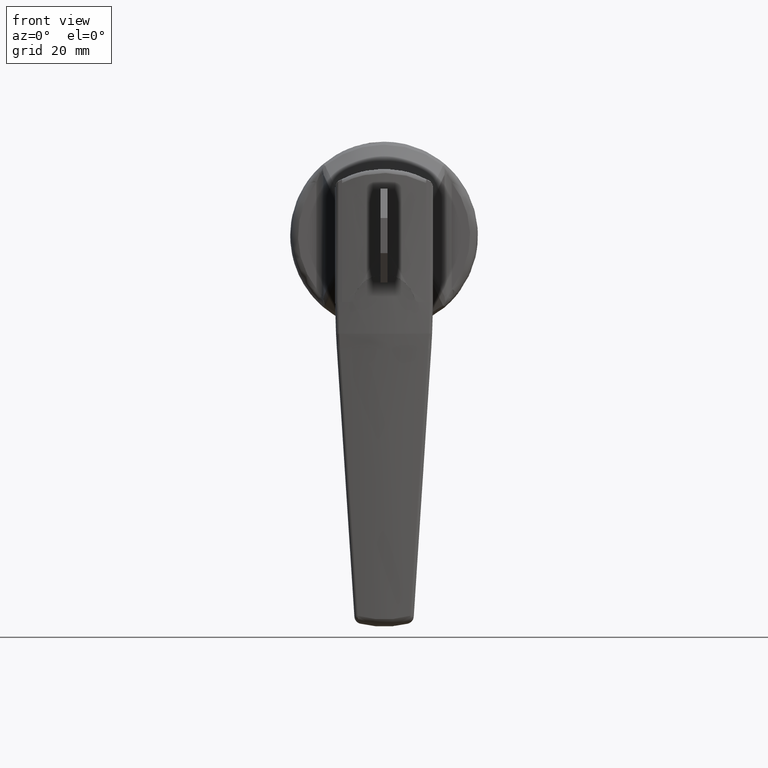
[diagram: clean part render]
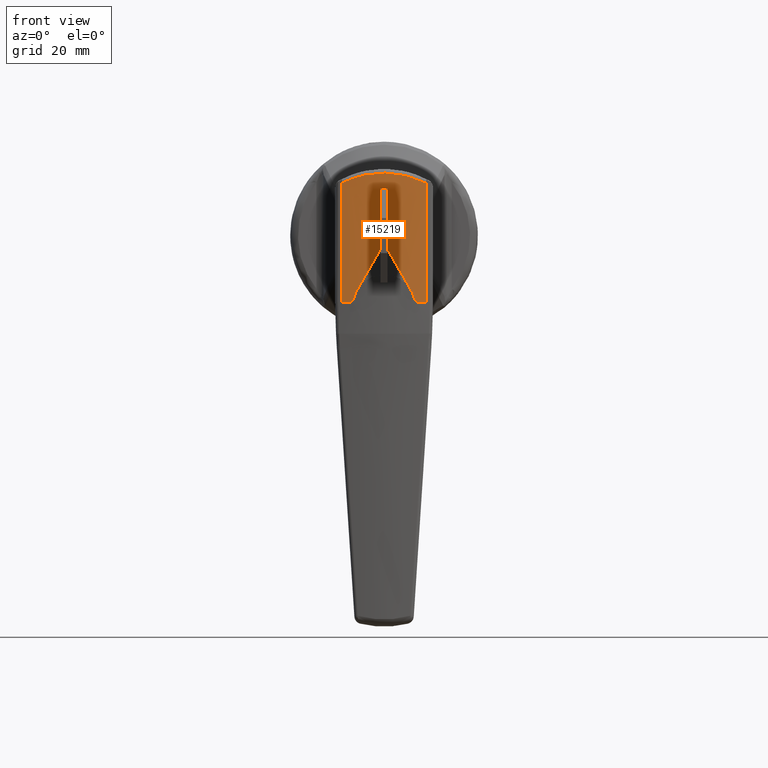
[diagram: same view with one face highlighted and labeled with its STEP entity id]
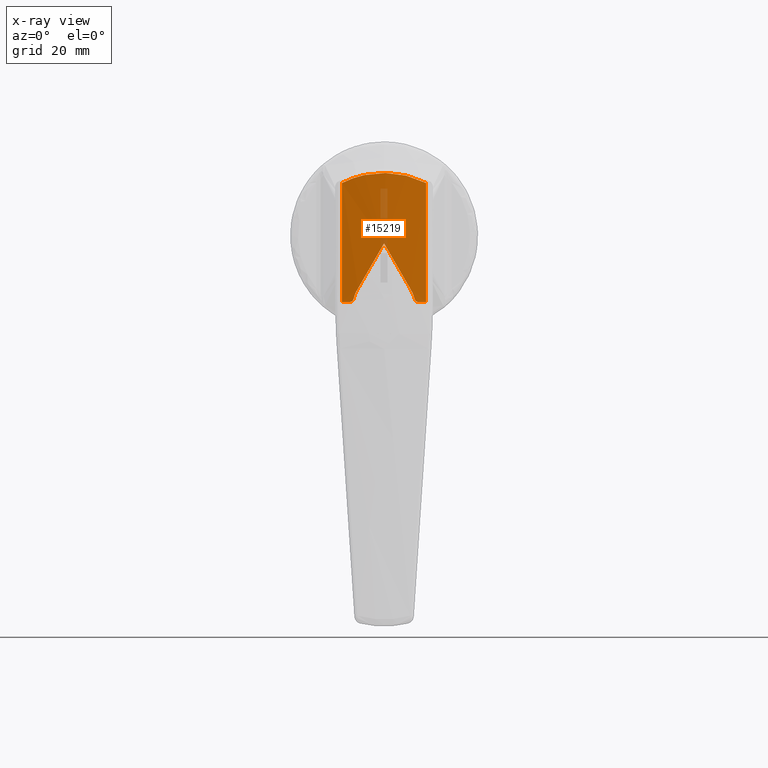
[diagram: x-ray of the same camera — body ghosted, the highlighted face saturated]
A machine part, front view. The second image highlights one B-rep face of the part: STEP entity #15219.
The next image is the same camera in x-ray: the body ghosted, the highlighted face saturated — about 5% of this face is hidden behind the body in this view.
In plain terms, the highlighted face is a freeform B-spline surface patch.
Its self-contained STEP definition (entity closure, byte-faithful):
#14646=CARTESIAN_POINT('',(-43.537279000000098,10.750000000000000,13.426115094219099));
#14647=VERTEX_POINT('',#14646);
#14665=CARTESIAN_POINT('',(-43.537278215540503,-10.750000124898760,13.426114976657461));
#14666=VERTEX_POINT('',#14665);
#14667=CARTESIAN_POINT('',(-43.537278215540503,-10.750000124898779,13.426114976657461));
#14668=CARTESIAN_POINT('',(-43.686708591824612,-9.922402191567278,13.847389578444931));
#14669=CARTESIAN_POINT('',(-43.822458786155167,-9.071986116519360,14.218833909848970));
#14670=CARTESIAN_POINT('',(-43.971818558240159,-7.979948184355112,14.620840445735800));
#14671=CARTESIAN_POINT('',(-44.000673693513292,-7.760084927824916,14.698115481884690));
#14672=CARTESIAN_POINT('',(-44.056266915473032,-7.317415249934289,14.846367005541630));
#14673=CARTESIAN_POINT('',(-44.082959700022052,-7.094947018606865,14.917222255324010));
#14674=CARTESIAN_POINT('',(-44.159399970210487,-6.426342137599623,15.119366884822499));
#14675=CARTESIAN_POINT('',(-44.205619818686174,-5.978137840326531,15.240538985697871));
#14676=CARTESIAN_POINT('',(-44.329655966135171,-4.626204726149862,15.563954815738430));
#14677=CARTESIAN_POINT('',(-44.392857058287298,-3.715178835734724,15.726239507692050));
#14678=CARTESIAN_POINT('',(-44.478009653531743,-1.873522295447263,15.944214853267169));
#14679=CARTESIAN_POINT('',(-44.499968688150190,-0.942894483352474,15.999920336488390));
#14680=CARTESIAN_POINT('',(-44.500031244988733,0.938871998346723,16.000079493404151));
#14681=CARTESIAN_POINT('',(-44.478127893306848,1.869949401578251,15.944516047425680));
#14682=CARTESIAN_POINT('',(-44.393022437078471,3.712614329307406,15.726664321190331));
#14683=CARTESIAN_POINT('',(-44.329812961171861,4.624323888622818,15.564362127514631));
#14684=CARTESIAN_POINT('',(-44.205683100388207,5.977532789943253,15.240705007749010));
#14685=CARTESIAN_POINT('',(-44.159418524964337,6.426204165911926,15.119416543633511));
#14686=CARTESIAN_POINT('',(-44.082886989523452,7.095570823767758,14.917029678042320));
#14687=CARTESIAN_POINT('',(-44.056151829886289,7.318356122482541,14.846060913556929));
#14688=CARTESIAN_POINT('',(-44.000582050683860,7.760790071183724,14.697870284175750));
#14689=CARTESIAN_POINT('',(-43.971738267909892,7.980549028885677,14.620624947482790));
#14690=CARTESIAN_POINT('',(-43.822431517954087,9.072130186117951,14.218758090278261));
#14691=CARTESIAN_POINT('',(-43.686711308371450,9.922387128016606,13.847397234812870));
#14692=CARTESIAN_POINT('',(-43.537279000000098,10.750000000000000,13.426115094219099));
#14693=B_SPLINE_CURVE_WITH_KNOTS('',3,(#14667,#14668,#14669,#14670,#14671,#14672,#14673,#14674,#14675,#14676,#14677,#14678,#14679,#14680,#14681,#14682,#14683,#14684,#14685,#14686,#14687,#14688,#14689,#14690,#14691,#14692),.UNSPECIFIED.,.F.,.U.,(4,2,2,2,2,2,2,2,2,2,2,2,4),(0.0,0.125000000000000,0.156250000000000,0.187500000000000,0.250000000000000,0.375000000000000,0.500000000000000,0.625000000000000,0.750000000000000,0.812500000000000,0.843750000000000,0.875000000000000,1.0),.UNSPECIFIED.);
#14694=EDGE_CURVE('',#14666,#14647,#14693,.T.);
#15005=CARTESIAN_POINT('',(-43.537278215540503,-10.750000124898760,-17.0));
#15006=VERTEX_POINT('',#15005);
#15007=CARTESIAN_POINT('',(-43.537278215540503,-10.750000124898760,13.426114976657461));
#15008=CARTESIAN_POINT('',(-43.537278215540503,-10.750000124898760,-17.0));
#15009=QUASI_UNIFORM_CURVE('',1,(#15007,#15008),.UNSPECIFIED.,.F.,.U.);
#15010=EDGE_CURVE('',#14666,#15006,#15009,.T.);
#15020=CARTESIAN_POINT('',(-43.337462433006827,11.803200922271046,16.825000000311807));
#15021=CARTESIAN_POINT('',(-43.337462433006827,11.803200922271046,-17.845625000007797));
#15022=CARTESIAN_POINT('',(-45.685525333926883,-0.001062606852432,16.825000000311810));
#15023=CARTESIAN_POINT('',(-45.685525333926883,-0.001062606852432,-17.845625000007786));
#15024=CARTESIAN_POINT('',(-43.337055749323369,-11.805245232594203,16.825000000311810));
#15025=CARTESIAN_POINT('',(-43.337055749323369,-11.805245232594203,-17.845625000007782));
#15033=(BOUNDED_SURFACE()B_SPLINE_SURFACE(1,2,((#15020,#15022,#15024),(#15021,#15023,#15025)),.UNSPECIFIED.,.F.,.F.,.U.)B_SPLINE_SURFACE_WITH_KNOTS((2,2),(3,3),(0.0,34.670625000319603),(0.0,23.837504803303339),.UNSPECIFIED.)GEOMETRIC_REPRESENTATION_ITEM()RATIONAL_B_SPLINE_SURFACE(((0.998777720247082,0.978586662766848,0.996748349218564),(0.998777720247082,0.978586662766848,0.996748349218564)))REPRESENTATION_ITEM('')SURFACE());
#15034=CARTESIAN_POINT('',(-43.995087250165803,7.799968323332790,-16.222222130015648));
#15035=VERTEX_POINT('',#15034);
#15036=CARTESIAN_POINT('',(-44.137342838481949,6.614377999999999,-13.499999999999719));
#15037=VERTEX_POINT('',#15036);
#15038=CARTESIAN_POINT('',(-43.995087250165803,7.799968323332790,-16.222222130015648));
#15039=CARTESIAN_POINT('',(-44.008011266776037,7.700557277176603,-15.786072890913610));
#15040=CARTESIAN_POINT('',(-44.025410424252492,7.565067411216221,-15.359256640164050));
#15041=CARTESIAN_POINT('',(-44.051971471999131,7.349316491213052,-14.837705728991530));
#15042=CARTESIAN_POINT('',(-44.057537495075529,7.303719255530198,-14.733771608657360));
#15043=CARTESIAN_POINT('',(-44.069031400243119,7.208576080806815,-14.528838259513689));
#15044=CARTESIAN_POINT('',(-44.074964273674922,7.158991483897222,-14.427715608141870));
#15045=CARTESIAN_POINT('',(-44.093263744136038,7.004298722087343,-14.128309470296630));
#15046=CARTESIAN_POINT('',(-44.106130933475427,6.893262186731714,-13.933980774554099));
#15047=CARTESIAN_POINT('',(-44.125364767548469,6.722570540497400,-13.662235812897229));
#15048=CARTESIAN_POINT('',(-44.131310134508951,6.669216534792989,-13.580624119799729));
#15049=CARTESIAN_POINT('',(-44.137342838481949,6.614377999999999,-13.499999999999719));
#15050=B_SPLINE_CURVE_WITH_KNOTS('',3,(#15038,#15039,#15040,#15041,#15042,#15043,#15044,#15045,#15046,#15047,#15048,#15049),.UNSPECIFIED.,.F.,.U.,(4,2,2,2,2,4),(0.0,0.062500000000000,0.078125000000000,0.093750000000000,0.125000000000000,0.138645389448752),.UNSPECIFIED.);
#15051=EDGE_CURVE('',#15035,#15037,#15050,.T.);
#15052=ORIENTED_EDGE('',*,*,#15051,.T.);
#15053=CARTESIAN_POINT('',(-44.134571334608353,6.639527874999950,-13.499999999999741));
#15054=VERTEX_POINT('',#15053);
#15055=CARTESIAN_POINT('',(-44.137342838481949,6.614377999999999,-13.499999999999741));
#15056=CARTESIAN_POINT('',(-44.135959716072030,6.626953227262900,-13.499999999999744));
#15057=CARTESIAN_POINT('',(-44.134571334608331,6.639527874999948,-13.499999999999741));
#15065=(BOUNDED_CURVE()B_SPLINE_CURVE(2,(#15055,#15056,#15057),.UNSPECIFIED.,.F.,.U.)CURVE()GEOMETRIC_REPRESENTATION_ITEM()QUASI_UNIFORM_CURVE()RATIONAL_B_SPLINE_CURVE((1.0,0.999999978136826,1.0))REPRESENTATION_ITEM(''));
#15066=EDGE_CURVE('',#15037,#15054,#15065,.T.);
#15067=ORIENTED_EDGE('',*,*,#15066,.T.);
#15068=CARTESIAN_POINT('',(-44.500000000000000,0.0,-2.0));
#15069=VERTEX_POINT('',#15068);
#15070=CARTESIAN_POINT('',(-44.134571334608331,6.639527874999965,-13.499999999999741));
#15071=CARTESIAN_POINT('',(-44.500000000000000,3.329820233068273,-7.767418015439009));
#15072=CARTESIAN_POINT('',(-44.500000000000000,3.704434E-015,-2.000000000000007));
#15080=(BOUNDED_CURVE()B_SPLINE_CURVE(2,(#15070,#15071,#15072),.UNSPECIFIED.,.F.,.U.)CURVE()GEOMETRIC_REPRESENTATION_ITEM()QUASI_UNIFORM_CURVE()RATIONAL_B_SPLINE_CURVE((1.0,0.998488822363744,1.0))REPRESENTATION_ITEM(''));
#15081=EDGE_CURVE('',#15054,#15069,#15080,.T.);
#15082=ORIENTED_EDGE('',*,*,#15081,.T.);
#15083=CARTESIAN_POINT('',(-44.134571320806963,-6.639527999999999,-13.499999999999741));
#15084=VERTEX_POINT('',#15083);
#15085=CARTESIAN_POINT('',(-44.500000000000000,1.111330E-014,-1.999999999999981));
#15086=CARTESIAN_POINT('',(-44.500000000000007,-3.329820248835866,-7.767418042749276));
#15087=CARTESIAN_POINT('',(-44.134571320806963,-6.639527999999999,-13.499999999999741));
#15095=(BOUNDED_CURVE()B_SPLINE_CURVE(2,(#15085,#15086,#15087),.UNSPECIFIED.,.F.,.U.)CURVE()GEOMETRIC_REPRESENTATION_ITEM()QUASI_UNIFORM_CURVE()RATIONAL_B_SPLINE_CURVE((1.0,0.998488822349251,1.0))REPRESENTATION_ITEM(''));
#15096=EDGE_CURVE('',#15069,#15084,#15095,.T.);
#15097=ORIENTED_EDGE('',*,*,#15096,.T.);
#15098=CARTESIAN_POINT('',(-44.137342807942552,-6.614378277661491,-13.499999999999741));
#15099=VERTEX_POINT('',#15098);
#15100=CARTESIAN_POINT('',(-44.134571320806927,-6.639527999999993,-13.499999999999741));
#15101=CARTESIAN_POINT('',(-44.135959693869111,-6.626953428595621,-13.499999999999742));
#15102=CARTESIAN_POINT('',(-44.137342807942552,-6.614378277661513,-13.499999999999741));
#15110=(BOUNDED_CURVE()B_SPLINE_CURVE(2,(#15100,#15101,#15102),.UNSPECIFIED.,.F.,.U.)CURVE()GEOMETRIC_REPRESENTATION_ITEM()QUASI_UNIFORM_CURVE()RATIONAL_B_SPLINE_CURVE((1.0,0.999999978137092,1.0))REPRESENTATION_ITEM(''));
#15111=EDGE_CURVE('',#15084,#15099,#15110,.T.);
#15112=ORIENTED_EDGE('',*,*,#15111,.T.);
#15113=CARTESIAN_POINT('',(-43.995087293629901,-7.799967989019470,-16.222222362898101));
#15114=VERTEX_POINT('',#15113);
#15115=CARTESIAN_POINT('',(-44.137342807942552,-6.614378277661491,-13.499999999999741));
#15116=CARTESIAN_POINT('',(-44.131298120357812,-6.669335661255566,-13.580780432788631));
#15117=CARTESIAN_POINT('',(-44.125346010058813,-6.722756579040190,-13.662487155540891));
#15118=CARTESIAN_POINT('',(-44.092732048890262,-7.012179301676098,-14.123306641007140));
#15119=CARTESIAN_POINT('',(-44.068144593405087,-7.217916513121144,-14.520681940746019));
#15120=CARTESIAN_POINT('',(-44.041546378487972,-7.434015494206209,-15.042274447424900));
#15121=CARTESIAN_POINT('',(-44.036425023933582,-7.475237834955387,-15.148060283879699));
#15122=CARTESIAN_POINT('',(-44.026718217799747,-7.552788466590473,-15.360278327841190));
#15123=CARTESIAN_POINT('',(-44.022123121213248,-7.589196550540373,-15.466878031313581));
#15124=CARTESIAN_POINT('',(-44.009137603486167,-7.691431436974204,-15.788126879079179));
#15125=CARTESIAN_POINT('',(-44.001547051387533,-7.750281190647446,-16.004223245653431));
#15126=CARTESIAN_POINT('',(-43.995087293629901,-7.799967989019470,-16.222222362898101));
#15127=B_SPLINE_CURVE_WITH_KNOTS('',3,(#15115,#15116,#15117,#15118,#15119,#15120,#15121,#15122,#15123,#15124,#15125,#15126),.UNSPECIFIED.,.F.,.U.,(4,2,2,2,2,4),(0.861344992751440,0.874999999999999,0.937499999999999,0.953125000000000,0.968750000000000,1.0),.UNSPECIFIED.);
#15128=EDGE_CURVE('',#15099,#15114,#15127,.T.);
#15129=ORIENTED_EDGE('',*,*,#15128,.T.);
#15130=CARTESIAN_POINT('',(-43.860253982076500,-8.774963999999999,-17.0));
#15131=VERTEX_POINT('',#15130);
#15132=CARTESIAN_POINT('',(-43.860253982076451,-8.774963999999999,-17.0));
#15133=CARTESIAN_POINT('',(-43.876780436062361,-8.662225334289175,-17.0));
#15134=CARTESIAN_POINT('',(-43.892532015086680,-8.552554872794634,-16.981464846931448));
#15135=CARTESIAN_POINT('',(-43.915071956085818,-8.392678297459419,-16.925765849467169));
#15136=CARTESIAN_POINT('',(-43.922209379548178,-8.341537874184741,-16.902911999885092));
#15137=CARTESIAN_POINT('',(-43.935725930092779,-8.243857608284648,-16.849137378022419));
#15138=CARTESIAN_POINT('',(-43.942116036930663,-8.197238770117522,-16.818189455301940));
#15139=CARTESIAN_POINT('',(-43.954164578364797,-8.108646505399276,-16.747811087373702));
#15140=CARTESIAN_POINT('',(-43.959682793402990,-8.067704664220178,-16.709163807993271));
#15141=CARTESIAN_POINT('',(-43.969683645725297,-7.993025876738636,-16.625860883907698));
#15142=CARTESIAN_POINT('',(-43.974183734213078,-7.959159255166562,-16.581103189666550));
#15143=CARTESIAN_POINT('',(-43.982179829459007,-7.898672897436208,-16.485110505246929));
#15144=CARTESIAN_POINT('',(-43.985586329145953,-7.872731575007244,-16.434883559816480));
#15145=CARTESIAN_POINT('',(-43.991211360034583,-7.829752822356245,-16.331244454993989));
#15146=CARTESIAN_POINT('',(-43.993444723230297,-7.812602163242711,-16.277654540420940));
#15147=CARTESIAN_POINT('',(-43.995087293629886,-7.799967989019451,-16.222222362898108));
#15148=B_SPLINE_CURVE_WITH_KNOTS('',3,(#15132,#15133,#15134,#15135,#15136,#15137,#15138,#15139,#15140,#15141,#15142,#15143,#15144,#15145,#15146,#15147),.UNSPECIFIED.,.F.,.U.,(4,2,2,2,2,2,2,4),(0.0,0.250000000000002,0.375000000000001,0.500000000000001,0.625000000000001,0.750000000000000,0.875000000000000,1.0),.UNSPECIFIED.);
#15149=EDGE_CURVE('',#15131,#15114,#15148,.T.);
#15150=ORIENTED_EDGE('',*,*,#15149,.F.);
#15151=CARTESIAN_POINT('',(-43.537278215540532,-10.750000124898760,-17.0));
#15152=CARTESIAN_POINT('',(-43.715101309523725,-9.765153343817886,-17.0));
#15153=CARTESIAN_POINT('',(-43.860253982076493,-8.774963999999995,-17.0));
#15161=(BOUNDED_CURVE()B_SPLINE_CURVE(2,(#15151,#15152,#15153),.UNSPECIFIED.,.F.,.U.)CURVE()GEOMETRIC_REPRESENTATION_ITEM()QUASI_UNIFORM_CURVE()RATIONAL_B_SPLINE_CURVE((1.0,0.999863214432832,1.0))REPRESENTATION_ITEM(''));
#15162=EDGE_CURVE('',#15006,#15131,#15161,.T.);
#15163=ORIENTED_EDGE('',*,*,#15162,.F.);
#15164=ORIENTED_EDGE('',*,*,#15010,.F.);
#15165=ORIENTED_EDGE('',*,*,#14694,.T.);
#15166=CARTESIAN_POINT('',(-43.537279000000098,10.750000000000000,-17.0));
#15167=VERTEX_POINT('',#15166);
#15168=CARTESIAN_POINT('',(-43.537279000000098,10.750000000000000,13.426115094219099));
#15169=CARTESIAN_POINT('',(-43.537279000000098,10.750000000000000,-17.0));
#15170=QUASI_UNIFORM_CURVE('',1,(#15168,#15169),.UNSPECIFIED.,.F.,.U.);
#15171=EDGE_CURVE('',#14647,#15167,#15170,.T.);
#15172=ORIENTED_EDGE('',*,*,#15171,.T.);
#15173=CARTESIAN_POINT('',(-43.860253982076451,8.774963999999999,-17.0));
#15174=VERTEX_POINT('',#15173);
#15175=CARTESIAN_POINT('',(-43.860253982076493,8.774963999999981,-17.0));
#15176=CARTESIAN_POINT('',(-43.715101328550944,9.765153214019755,-16.999999999999996));
#15177=CARTESIAN_POINT('',(-43.537279000000098,10.750000000000000,-17.0));
#15185=(BOUNDED_CURVE()B_SPLINE_CURVE(2,(#15175,#15176,#15177),.UNSPECIFIED.,.F.,.U.)CURVE()GEOMETRIC_REPRESENTATION_ITEM()QUASI_UNIFORM_CURVE()RATIONAL_B_SPLINE_CURVE((1.0,0.999863214468686,1.0))REPRESENTATION_ITEM(''));
#15186=EDGE_CURVE('',#15174,#15167,#15185,.T.);
#15187=ORIENTED_EDGE('',*,*,#15186,.F.);
#15188=CARTESIAN_POINT('',(-43.995087250165803,7.799968323332790,-16.222222130015648));
#15189=CARTESIAN_POINT('',(-43.994276627142497,7.806203400110804,-16.249580120712618));
#15190=CARTESIAN_POINT('',(-43.993314426683192,7.813597050715172,-16.276714841398551));
#15191=CARTESIAN_POINT('',(-43.991078461097970,7.830745803830358,-16.330529140393999));
#15192=CARTESIAN_POINT('',(-43.989797823252012,7.840553327629167,-16.357316330083972));
#15193=CARTESIAN_POINT('',(-43.985544405236148,7.873051494791209,-16.435599461074879));
#15194=CARTESIAN_POINT('',(-43.982155013780137,7.898859797768155,-16.485365029371849));
#15195=CARTESIAN_POINT('',(-43.976237346408837,7.943625137034108,-16.556471150329418));
#15196=CARTESIAN_POINT('',(-43.974125081956828,7.959561150638549,-16.579579644594279));
#15197=CARTESIAN_POINT('',(-43.969611049513077,7.993500086137214,-16.624586681338211));
#15198=CARTESIAN_POINT('',(-43.967199125887468,8.011578420677212,-16.646556789885260));
#15199=CARTESIAN_POINT('',(-43.959645957381952,8.067979663051181,-16.709468849469740));
#15200=CARTESIAN_POINT('',(-43.954160791339483,8.108671222570457,-16.747778507482160));
#15201=CARTESIAN_POINT('',(-43.945246211009142,8.174224305637617,-16.799932190872550));
#15202=CARTESIAN_POINT('',(-43.942159641414577,8.196831970708004,-16.816426904199549));
#15203=CARTESIAN_POINT('',(-43.935747250601629,8.243588923815413,-16.847602537516231));
#15204=CARTESIAN_POINT('',(-43.932409438777277,8.267824055782889,-16.862320511328161));
#15205=CARTESIAN_POINT('',(-43.922205914861500,8.341564680287974,-16.902948159522090));
#15206=CARTESIAN_POINT('',(-43.915104476577547,8.392441352876658,-16.925621553242269));
#15207=CARTESIAN_POINT('',(-43.903992928581573,8.471265270761956,-16.953174585638131));
#15208=CARTESIAN_POINT('',(-43.900212200241270,8.497960281450830,-16.961277072773321));
#15209=CARTESIAN_POINT('',(-43.892491236948260,8.552206967276142,-16.975276358321992));
#15210=CARTESIAN_POINT('',(-43.888539504254020,8.579837851971240,-16.981179686106259));
#15211=CARTESIAN_POINT('',(-43.876607509258491,8.662851681580305,-16.995279854285730));
#15212=CARTESIAN_POINT('',(-43.868506039671452,8.718670861531111,-17.0));
#15213=CARTESIAN_POINT('',(-43.860253982076451,8.774963999999999,-17.0));
#15214=B_SPLINE_CURVE_WITH_KNOTS('',3,(#15188,#15189,#15190,#15191,#15192,#15193,#15194,#15195,#15196,#15197,#15198,#15199,#15200,#15201,#15202,#15203,#15204,#15205,#15206,#15207,#15208,#15209,#15210,#15211,#15212,#15213),.UNSPECIFIED.,.F.,.U.,(4,2,2,2,2,2,2,2,2,2,2,2,4),(0.0,0.062499999999997,0.124999999999994,0.249999999999997,0.312500000000003,0.375000000000009,0.500000000000017,0.562500000000019,0.625000000000021,0.750000000000019,0.812500000000015,0.875000000000012,1.0),.UNSPECIFIED.);
#15215=EDGE_CURVE('',#15035,#15174,#15214,.T.);
#15216=ORIENTED_EDGE('',*,*,#15215,.F.);
#15217=EDGE_LOOP('',(#15052,#15067,#15082,#15097,#15112,#15129,#15150,#15163,#15164,#15165,#15172,#15187,#15216));
#15218=FACE_OUTER_BOUND('',#15217,.T.);
#15219=ADVANCED_FACE('',(#15218),#15033,.T.);